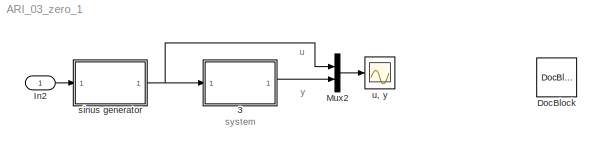
MODEL ARI_03_zero_1
KIND model
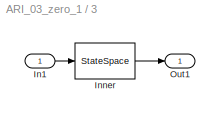
BLOCK [SubSystem]   3
  FunctionWithSeparateData = off
  MaskHideContents = off
  MinAlgLoopOccurrences = off
  Opaque = off
  Ports = [1, 1]
  PropExecContextOutsideSubsystem = off
  RTWSystemCode = Auto
  RequestExecContextInheritance = off
  SID = 13
  ShowPortLabels = none
BLOCK [Inport]   3/In1
  IconDisplay = Port number
  SID = 14
BLOCK [StateSpace]   3/Inner
  A = A
  B = B
  C = C
  D = D
  SID = 15
  X0 = InCon
BLOCK [Outport]   3/Out1
  IconDisplay = Port number
  SID = 16
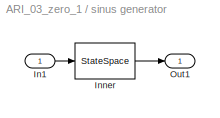
BLOCK [SubSystem]  sinus generator
  FunctionWithSeparateData = off
  MaskHideContents = off
  MinAlgLoopOccurrences = off
  Opaque = off
  Ports = [1, 1]
  PropExecContextOutsideSubsystem = off
  RTWSystemCode = Auto
  RequestExecContextInheritance = off
  SID = 53
  ShowPortLabels = none
BLOCK [Inport]  sinus generator/In1
  IconDisplay = Port number
  SID = 54
BLOCK [StateSpace]  sinus generator/Inner
  A = A
  B = B
  C = C
  D = D
  SID = 55
  X0 = InCon
BLOCK [Outport]  sinus generator/Out1
  IconDisplay = Port number
  SID = 56
BLOCK [Reference] DocBlock  REF=simulink/Model-Wide\nUtilities/DocBlock
  DocumentType = Text
  Ports = []
  SID = 109
  SourceBlock = simulink/Model-Wide\nUtilities/DocBlock
  SourceType = DocBlock
  UserData = DataTag0
  UserDataPersistent = on
BLOCK [Inport] In2
  IconDisplay = Port number
  SID = 2
BLOCK [Mux] Mux2
  DisplayOption = bar
  Inputs = 2
  Ports = [2, 1]
  SID = 39
BLOCK [Scope] u, y
  DataFormat = StructureWithTime
  Floating = off
  NumInputPorts = 1
  Ports = [1]
  SID = 47
  SampleTime = 0
  SaveName = ScopeData2
  ShowLegends = off
ANNOTATION (root): system
ANNOTATION (root): u
ANNOTATION (root): y
LINE   3/In1:1 ->   3/Inner:1
LINE   3/Inner:1 ->   3/Out1:1
LINE   3:1 -> Mux2:2
LINE  sinus generator/In1:1 ->  sinus generator/Inner:1
LINE  sinus generator/Inner:1 ->  sinus generator/Out1:1
NET  sinus generator:1 ->   3:1, Mux2:1
LINE In2:1 ->  sinus generator:1
LINE Mux2:1 -> u, y:1
note: NET lines group one-source signal fan-out (src -> all destinations, sorted); 1:1 wires keep LINE
